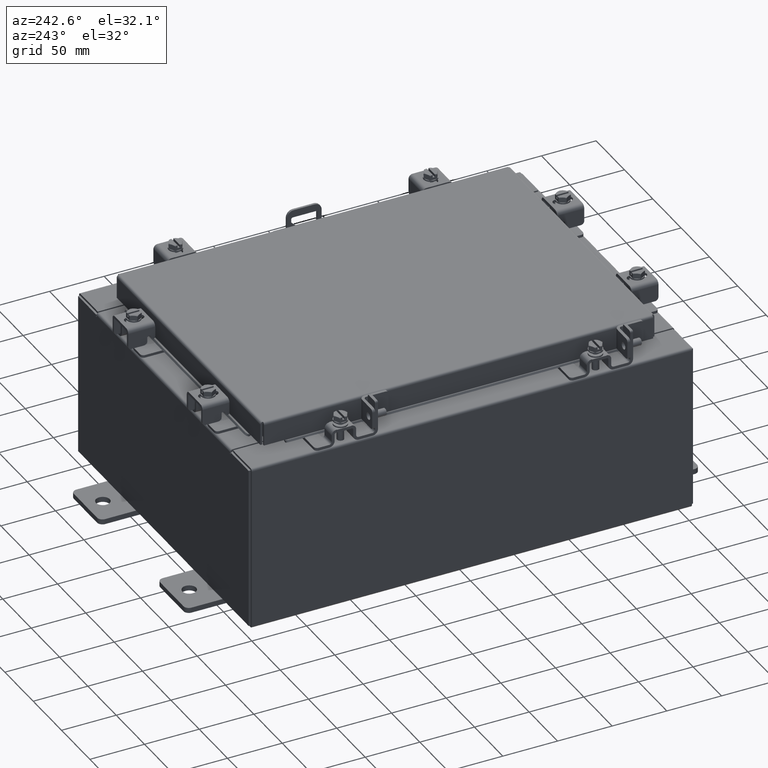
[diagram: clean part render]
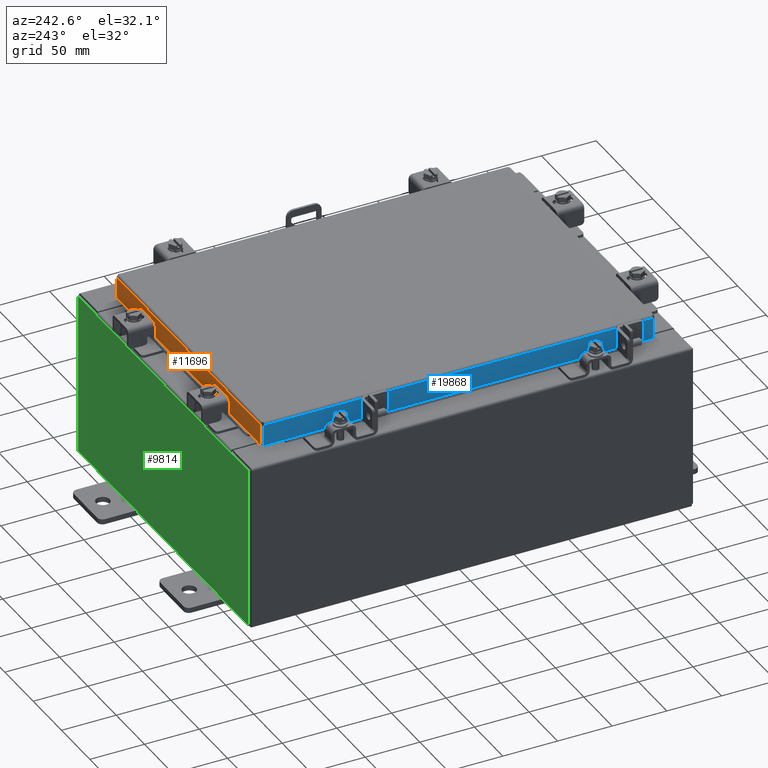
[diagram: same view with three faces highlighted in distinct colors, each labeled with its STEP entity id]
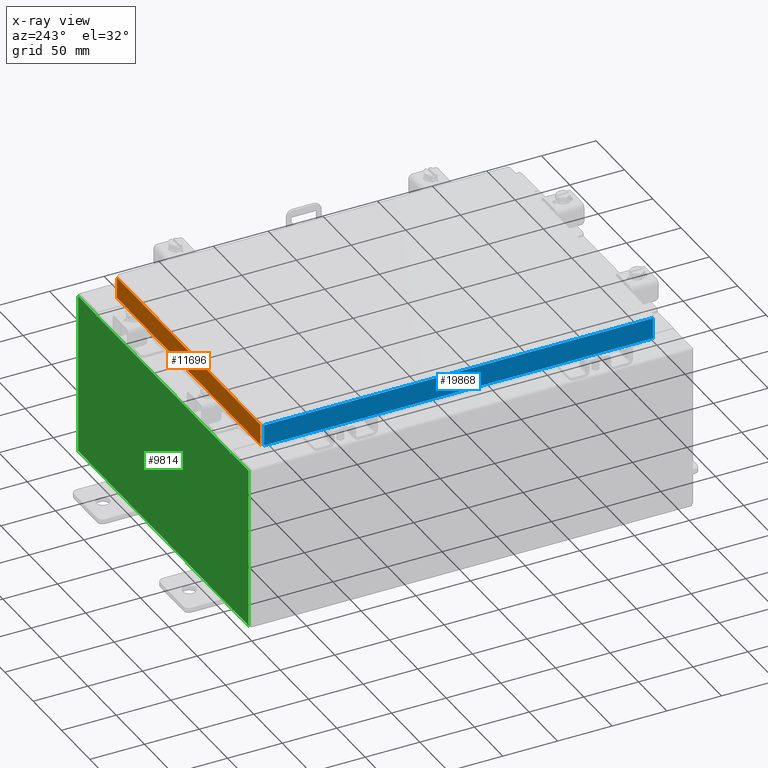
[diagram: x-ray of the same camera — body ghosted, the three highlighted faces saturated]
A machine part, auxiliary view with three faces highlighted in distinct colors.
The next image is the same camera in x-ray (body ghosted, the three faces saturated) — at least one of them is partly hidden behind the body in this view.
Their STEP definitions:

[orange] entity #11696 — the highlighted planar face has unit normal (0, -1, -0).
#90 = VECTOR ( 'NONE', #2516, 39.37007874015748100 ) ;
#124 = ORIENTED_EDGE ( 'NONE', *, *, #761, .T. ) ;
#314 = VERTEX_POINT ( 'NONE', #10337 ) ;
#714 = CARTESIAN_POINT ( 'NONE',  ( -5.078000000000001200, 7.094000000000000300, -0.08770000000000026400 ) ) ;
#761 = EDGE_CURVE ( 'NONE', #3770, #10374, #7259, .T. ) ;
#1057 = ORIENTED_EDGE ( 'NONE', *, *, #15306, .F. ) ;
#1594 = ORIENTED_EDGE ( 'NONE', *, *, #14533, .F. ) ;
#1745 = VECTOR ( 'NONE', #5595, 39.37007874015748100 ) ;
#2284 = CARTESIAN_POINT ( 'NONE',  ( -4.989157864376269700, 7.094000000000000300, -0.08770000000000026400 ) ) ;
#2516 = DIRECTION ( 'NONE',  ( 1.000000000000000000, 4.379057701015054300E-047, 1.210448599004448700E-016 ) ) ;
#2962 = VECTOR ( 'NONE', #8541, 39.37007874015748100 ) ;
#3534 = LINE ( 'NONE', #9274, #19609 ) ;
#3770 = VERTEX_POINT ( 'NONE', #14539 ) ;
#3883 = DIRECTION ( 'NONE',  ( 3.412110487939137700E-031, -1.000000000000000000, -2.818880942772355800E-015 ) ) ;
#4385 = LINE ( 'NONE', #5711, #90 ) ;
#4869 = ORIENTED_EDGE ( 'NONE', *, *, #7162, .F. ) ;
#5065 = VECTOR ( 'NONE', #16799, 39.37007874015748100 ) ;
#5178 = LINE ( 'NONE', #18032, #10458 ) ;
#5584 = CARTESIAN_POINT ( 'NONE',  ( -4.989157864376269700, 7.094000000000000300, -0.07470000000000015500 ) ) ;
#5595 = DIRECTION ( 'NONE',  ( -1.000000000000000000, -3.412110487939138600E-031, -9.300620212429610200E-046 ) ) ;
#5711 = CARTESIAN_POINT ( 'NONE',  ( -5.078000000000001200, 7.094000000000002100, -0.8500000000000010900 ) ) ;
#7162 = EDGE_CURVE ( 'NONE', #3770, #16846, #19353, .T. ) ;
#7259 = LINE ( 'NONE', #7400, #2962 ) ;
#7400 = CARTESIAN_POINT ( 'NONE',  ( 4.989157864376268000, 7.094000000000000300, 2.076204475184840000E-014 ) ) ;
#7563 = CARTESIAN_POINT ( 'NONE',  ( 4.989157864376268000, 7.094000000000002100, -0.8499999999999999800 ) ) ;
#7693 = FACE_OUTER_BOUND ( 'NONE', #11399, .T. ) ;
#8474 = DIRECTION ( 'NONE',  ( 1.000000000000000000, 4.379057701015054300E-047, 1.210448599004448700E-016 ) ) ;
#8541 = DIRECTION ( 'NONE',  ( 0.0000000000000000000, 2.818880942772355800E-015, -1.000000000000000000 ) ) ;
#8751 = ORIENTED_EDGE ( 'NONE', *, *, #17831, .F. ) ;
#9274 = CARTESIAN_POINT ( 'NONE',  ( -4.239157864376270600, 7.094000000000000300, -0.8500000000000010900 ) ) ;
#10337 = CARTESIAN_POINT ( 'NONE',  ( -4.989157864376269700, 7.094000000000002100, -0.8500000000000010900 ) ) ;
#10374 = VERTEX_POINT ( 'NONE', #7563 ) ;
#10458 = VECTOR ( 'NONE', #8474, 39.37007874015748100 ) ;
#11133 = VERTEX_POINT ( 'NONE', #12649 ) ;
#11399 = EDGE_LOOP ( 'NONE', ( #4869, #124, #1057, #8751, #15434, #1594 ) ) ;
#11696 = ADVANCED_FACE ( 'NONE', ( #7693 ), #18251, .F. ) ;
#12057 = AXIS2_PLACEMENT_3D ( 'NONE', #15031, #3883, #15098 ) ;
#12649 = CARTESIAN_POINT ( 'NONE',  ( 4.239157864376268000, 7.094000000000000300, -0.8500000000000010900 ) ) ;
#12886 = CARTESIAN_POINT ( 'NONE',  ( -4.239157864376270600, 7.094000000000000300, -0.8500000000000010900 ) ) ;
#14533 = EDGE_CURVE ( 'NONE', #16846, #314, #17330, .T. ) ;
#14539 = CARTESIAN_POINT ( 'NONE',  ( 4.989157864376268000, 7.094000000000000300, -0.08770000000000026400 ) ) ;
#14957 = VERTEX_POINT ( 'NONE', #12886 ) ;
#15031 = CARTESIAN_POINT ( 'NONE',  ( 0.0000000000000000000, 7.094000000000000300, 2.076204475184840000E-014 ) ) ;
#15098 = DIRECTION ( 'NONE',  ( 0.0000000000000000000, 2.818880942772355800E-015, -1.000000000000000000 ) ) ;
#15306 = EDGE_CURVE ( 'NONE', #11133, #10374, #4385, .T. ) ;
#15434 = ORIENTED_EDGE ( 'NONE', *, *, #19283, .F. ) ;
#16799 = DIRECTION ( 'NONE',  ( -0.0000000000000000000, 2.818880942772355800E-015, -1.000000000000000000 ) ) ;
#16846 = VERTEX_POINT ( 'NONE', #2284 ) ;
#17243 = DIRECTION ( 'NONE',  ( 1.000000000000000000, -0.0000000000000000000, -0.0000000000000000000 ) ) ;
#17330 = LINE ( 'NONE', #5584, #5065 ) ;
#17831 = EDGE_CURVE ( 'NONE', #14957, #11133, #3534, .T. ) ;
#18032 = CARTESIAN_POINT ( 'NONE',  ( -5.078000000000001200, 7.094000000000002100, -0.8500000000000010900 ) ) ;
#18251 = PLANE ( 'NONE',  #12057 ) ;
#19283 = EDGE_CURVE ( 'NONE', #314, #14957, #5178, .T. ) ;
#19353 = LINE ( 'NONE', #714, #1745 ) ;
#19609 = VECTOR ( 'NONE', #17243, 39.37007874015748100 ) ;

[blue] entity #19868 — the highlighted planar face has unit normal (1, 0, -0).
#42 = CARTESIAN_POINT ( 'NONE',  ( -5.078000000000001200, 7.005157864376269700, -0.08770000000000026400 ) ) ;
#1686 = EDGE_CURVE ( 'NONE', #11423, #14892, #2170, .T. ) ;
#2170 = LINE ( 'NONE', #5335, #18761 ) ;
#2344 = VECTOR ( 'NONE', #12616, 39.37007874015748100 ) ;
#3500 = DIRECTION ( 'NONE',  ( -0.0000000000000000000, 1.000000000000000000, -0.0000000000000000000 ) ) ;
#3504 = CARTESIAN_POINT ( 'NONE',  ( -5.078000000000001200, -7.005157864376269700, -0.08770000000000026400 ) ) ;
#4234 = AXIS2_PLACEMENT_3D ( 'NONE', #8165, #19355, #9763 ) ;
#4538 = CARTESIAN_POINT ( 'NONE',  ( -5.078000000000001200, -7.094000000000000300, -0.08770000000000026400 ) ) ;
#5103 = ORIENTED_EDGE ( 'NONE', *, *, #12701, .F. ) ;
#5335 = CARTESIAN_POINT ( 'NONE',  ( -5.078000000000003000, -7.094000000000000300, -0.8499999999999999800 ) ) ;
#5694 = DIRECTION ( 'NONE',  ( 4.379057701015054300E-047, 1.000000000000000000, 1.251551449028595500E-016 ) ) ;
#5884 = LINE ( 'NONE', #16347, #18161 ) ;
#6081 = ORIENTED_EDGE ( 'NONE', *, *, #12721, .F. ) ;
#6398 = VECTOR ( 'NONE', #16893, 39.37007874015748100 ) ;
#6970 = ORIENTED_EDGE ( 'NONE', *, *, #1686, .F. ) ;
#7137 = VECTOR ( 'NONE', #20628, 39.37007874015748100 ) ;
#7697 = EDGE_CURVE ( 'NONE', #8214, #14892, #9061, .T. ) ;
#7791 = CARTESIAN_POINT ( 'NONE',  ( -5.078000000000001200, -7.005157864376269700, -0.07470000000000015500 ) ) ;
#8165 = CARTESIAN_POINT ( 'NONE',  ( -5.078000000000001200, 0.0000000000000000000, 1.420560956705417000E-014 ) ) ;
#8204 = EDGE_LOOP ( 'NONE', ( #6081, #16675, #6970, #16916, #20710, #5103 ) ) ;
#8214 = VERTEX_POINT ( 'NONE', #42 ) ;
#8601 = DIRECTION ( 'NONE',  ( -2.818880942772360100E-015, 6.982962677686267500E-015, -1.000000000000000000 ) ) ;
#8846 = CARTESIAN_POINT ( 'NONE',  ( -5.078000000000003000, -7.094000000000000300, -0.8499999999999999800 ) ) ;
#9061 = LINE ( 'NONE', #18187, #17573 ) ;
#9523 = CARTESIAN_POINT ( 'NONE',  ( -5.078000000000003000, 7.005157864376276000, -0.8499999999999977600 ) ) ;
#9753 = CARTESIAN_POINT ( 'NONE',  ( -5.078000000000003000, -7.005157864376264400, -0.8499999999999999800 ) ) ;
#9763 = DIRECTION ( 'NONE',  ( -2.818880942772360100E-015, 0.0000000000000000000, -1.000000000000000000 ) ) ;
#9987 = VERTEX_POINT ( 'NONE', #13118 ) ;
#10676 = LINE ( 'NONE', #8846, #6398 ) ;
#11423 = VERTEX_POINT ( 'NONE', #12971 ) ;
#11439 = LINE ( 'NONE', #7791, #7137 ) ;
#12192 = VERTEX_POINT ( 'NONE', #3504 ) ;
#12449 = EDGE_CURVE ( 'NONE', #17316, #9987, #10676, .T. ) ;
#12616 = DIRECTION ( 'NONE',  ( 3.527974528565840600E-031, -1.000000000000000000, -9.616438660265784900E-046 ) ) ;
#12701 = EDGE_CURVE ( 'NONE', #12192, #17316, #11439, .T. ) ;
#12721 = EDGE_CURVE ( 'NONE', #8214, #12192, #19435, .T. ) ;
#12971 = CARTESIAN_POINT ( 'NONE',  ( -5.078000000000001200, 6.255157864376274200, -0.8499999999999999800 ) ) ;
#13118 = CARTESIAN_POINT ( 'NONE',  ( -5.078000000000001200, -6.255157864376263500, -0.8499999999999999800 ) ) ;
#14194 = FACE_OUTER_BOUND ( 'NONE', #8204, .T. ) ;
#14892 = VERTEX_POINT ( 'NONE', #9523 ) ;
#15756 = EDGE_CURVE ( 'NONE', #9987, #11423, #5884, .T. ) ;
#16135 = PLANE ( 'NONE',  #4234 ) ;
#16347 = CARTESIAN_POINT ( 'NONE',  ( -5.078000000000001200, -6.255157864376263500, -0.8499999999999999800 ) ) ;
#16675 = ORIENTED_EDGE ( 'NONE', *, *, #7697, .T. ) ;
#16893 = DIRECTION ( 'NONE',  ( 4.379057701015054300E-047, 1.000000000000000000, 1.251551449028595500E-016 ) ) ;
#16916 = ORIENTED_EDGE ( 'NONE', *, *, #15756, .F. ) ;
#17316 = VERTEX_POINT ( 'NONE', #9753 ) ;
#17573 = VECTOR ( 'NONE', #8601, 39.37007874015748100 ) ;
#18161 = VECTOR ( 'NONE', #3500, 39.37007874015748100 ) ;
#18187 = CARTESIAN_POINT ( 'NONE',  ( -5.078000000000001200, 7.005157864376269700, 6.337887345301090800E-014 ) ) ;
#18761 = VECTOR ( 'NONE', #5694, 39.37007874015748100 ) ;
#19355 = DIRECTION ( 'NONE',  ( 1.000000000000000000, 3.527974528565840600E-031, -2.818880942772360100E-015 ) ) ;
#19435 = LINE ( 'NONE', #4538, #2344 ) ;
#19868 = ADVANCED_FACE ( 'NONE', ( #14194 ), #16135, .F. ) ;
#20628 = DIRECTION ( 'NONE',  ( -2.818880942772360100E-015, 6.982962677686267500E-015, -1.000000000000000000 ) ) ;
#20710 = ORIENTED_EDGE ( 'NONE', *, *, #12449, .F. ) ;

[green] entity #9814 — the highlighted planar face has unit normal (0, -1, 0).
#55 = CARTESIAN_POINT ( 'NONE',  ( -5.925299999999999100, 0.0000000000000000000, 2.925299999999999100 ) ) ;
#334 = LINE ( 'NONE', #1585, #8439 ) ;
#558 = DIRECTION ( 'NONE',  ( -0.0000000000000000000, -0.0000000000000000000, 1.000000000000000000 ) ) ;
#629 = EDGE_CURVE ( 'NONE', #18871, #6990, #4474, .T. ) ;
#709 = DIRECTION ( 'NONE',  ( 0.0000000000000000000, 0.0000000000000000000, -1.000000000000000000 ) ) ;
#873 = EDGE_CURVE ( 'NONE', #10125, #19446, #10527, .T. ) ;
#1021 = VERTEX_POINT ( 'NONE', #3973 ) ;
#1205 = AXIS2_PLACEMENT_3D ( 'NONE', #19990, #10372, #709 ) ;
#1585 = CARTESIAN_POINT ( 'NONE',  ( 4.674549999999970700, 0.0000000000000000000, -5.081237268215529600E-014 ) ) ;
#1832 = ORIENTED_EDGE ( 'NONE', *, *, #16704, .T. ) ;
#2078 = LINE ( 'NONE', #5379, #5870 ) ;
#2146 = CARTESIAN_POINT ( 'NONE',  ( -4.637199999999999100, 0.0000000000000000000, 2.912299999999998800 ) ) ;
#2536 = VERTEX_POINT ( 'NONE', #13112 ) ;
#2603 = ORIENTED_EDGE ( 'NONE', *, *, #18263, .F. ) ;
#2618 = ORIENTED_EDGE ( 'NONE', *, *, #4788, .T. ) ;
#2707 = EDGE_CURVE ( 'NONE', #19446, #7401, #7955, .T. ) ;
#2902 = ORIENTED_EDGE ( 'NONE', *, *, #629, .F. ) ;
#3219 = CARTESIAN_POINT ( 'NONE',  ( -5.925299999999999100, 0.0000000000000000000, -2.925299999999999600 ) ) ;
#3280 = CARTESIAN_POINT ( 'NONE',  ( -5.925299999999999100, 0.0000000000000000000, 2.925299999999999100 ) ) ;
#3715 = DIRECTION ( 'NONE',  ( 1.000000000000000000, 0.0000000000000000000, 0.0000000000000000000 ) ) ;
#3884 = DIRECTION ( 'NONE',  ( 1.000000000000000000, 0.0000000000000000000, 0.0000000000000000000 ) ) ;
#3973 = CARTESIAN_POINT ( 'NONE',  ( 4.674550000000001800, 0.0000000000000000000, 2.874949999999999700 ) ) ;
#4086 = ORIENTED_EDGE ( 'NONE', *, *, #7029, .F. ) ;
#4474 = LINE ( 'NONE', #10441, #17779 ) ;
#4550 = EDGE_CURVE ( 'NONE', #10125, #1021, #334, .T. ) ;
#4788 = EDGE_CURVE ( 'NONE', #16732, #14496, #12933, .T. ) ;
#5256 = CARTESIAN_POINT ( 'NONE',  ( 4.637200000000001800, 0.0000000000000000000, 2.912299999999998800 ) ) ;
#5319 = CARTESIAN_POINT ( 'NONE',  ( -4.637199999999999100, 0.0000000000000000000, 0.0000000000000000000 ) ) ;
#5379 = CARTESIAN_POINT ( 'NONE',  ( -5.925299999999999100, 0.0000000000000000000, 2.925299999999999100 ) ) ;
#5385 = VECTOR ( 'NONE', #3715, 39.37007874015748100 ) ;
#5434 = DIRECTION ( 'NONE',  ( 0.0000000000000000000, 0.0000000000000000000, 1.000000000000000000 ) ) ;
#5670 = AXIS2_PLACEMENT_3D ( 'NONE', #17641, #8064, #19276 ) ;
#5742 = VECTOR ( 'NONE', #3884, 39.37007874015748100 ) ;
#5870 = VECTOR ( 'NONE', #558, 39.37007874015748100 ) ;
#6488 = EDGE_CURVE ( 'NONE', #2536, #14496, #20386, .T. ) ;
#6842 = ORIENTED_EDGE ( 'NONE', *, *, #20711, .T. ) ;
#6941 = CARTESIAN_POINT ( 'NONE',  ( 5.925300000000001800, 0.0000000000000000000, 2.925299999999999100 ) ) ;
#6947 = DIRECTION ( 'NONE',  ( 0.0000000000000000000, 0.0000000000000000000, -1.000000000000000000 ) ) ;
#6990 = VERTEX_POINT ( 'NONE', #5256 ) ;
#7029 = EDGE_CURVE ( 'NONE', #13405, #13507, #12846, .T. ) ;
#7061 = CARTESIAN_POINT ( 'NONE',  ( -4.674549999999999100, 0.0000000000000000000, 2.925299999999999100 ) ) ;
#7066 = CARTESIAN_POINT ( 'NONE',  ( -4.637199999999999100, 0.0000000000000000000, 2.912299999999998800 ) ) ;
#7394 = ORIENTED_EDGE ( 'NONE', *, *, #6488, .F. ) ;
#7401 = VERTEX_POINT ( 'NONE', #14304 ) ;
#7584 = VECTOR ( 'NONE', #18452, 39.37007874015748100 ) ;
#7955 = LINE ( 'NONE', #6941, #14960 ) ;
#8024 = CARTESIAN_POINT ( 'NONE',  ( 0.0000000000000000000, 0.0000000000000000000, 0.0000000000000000000 ) ) ;
#8064 = DIRECTION ( 'NONE',  ( -0.0000000000000000000, 1.000000000000000000, -0.0000000000000000000 ) ) ;
#8439 = VECTOR ( 'NONE', #12860, 39.37007874015748100 ) ;
#8560 = DIRECTION ( 'NONE',  ( 1.000000000000000000, 0.0000000000000000000, 0.0000000000000000000 ) ) ;
#8629 = CARTESIAN_POINT ( 'NONE',  ( 4.674550000000000900, 0.0000000000000000000, 2.925299999999999100 ) ) ;
#8791 = EDGE_CURVE ( 'NONE', #1021, #18871, #14303, .T. ) ;
#8855 = CARTESIAN_POINT ( 'NONE',  ( -4.674549999999999100, 0.0000000000000000000, 0.0000000000000000000 ) ) ;
#9814 = ADVANCED_FACE ( 'NONE', ( #18511 ), #19234, .F. ) ;
#10125 = VERTEX_POINT ( 'NONE', #8629 ) ;
#10372 = DIRECTION ( 'NONE',  ( -0.0000000000000000000, 1.000000000000000000, -0.0000000000000000000 ) ) ;
#10441 = CARTESIAN_POINT ( 'NONE',  ( 4.637200000000001800, 0.0000000000000000000, 0.0000000000000000000 ) ) ;
#10523 = CARTESIAN_POINT ( 'NONE',  ( -4.637199999999999100, 0.0000000000000000000, 2.874949999999999700 ) ) ;
#10527 = LINE ( 'NONE', #55, #5742 ) ;
#11261 = DIRECTION ( 'NONE',  ( 0.0000000000000000000, -0.0000000000000000000, -1.000000000000000000 ) ) ;
#11746 = CARTESIAN_POINT ( 'NONE',  ( -5.925299999999999100, 0.0000000000000000000, 2.925299999999999100 ) ) ;
#11886 = DIRECTION ( 'NONE',  ( 0.0000000000000000000, 0.0000000000000000000, -1.000000000000000000 ) ) ;
#11991 = CARTESIAN_POINT ( 'NONE',  ( 4.637200000000001800, 0.0000000000000000000, 2.874949999999999700 ) ) ;
#12189 = VECTOR ( 'NONE', #8560, 39.37007874015748100 ) ;
#12739 = ORIENTED_EDGE ( 'NONE', *, *, #20037, .T. ) ;
#12846 = LINE ( 'NONE', #5319, #17593 ) ;
#12860 = DIRECTION ( 'NONE',  ( -1.085143195100001200E-014, 0.0000000000000000000, -1.000000000000000000 ) ) ;
#12933 = LINE ( 'NONE', #11746, #5385 ) ;
#13000 = ORIENTED_EDGE ( 'NONE', *, *, #873, .T. ) ;
#13112 = CARTESIAN_POINT ( 'NONE',  ( -4.674549999999999100, 0.0000000000000000000, 2.874949999999999700 ) ) ;
#13405 = VERTEX_POINT ( 'NONE', #7066 ) ;
#13507 = VERTEX_POINT ( 'NONE', #10523 ) ;
#14077 = CIRCLE ( 'NONE', #1205, 0.01867500000000003900 ) ;
#14259 = CARTESIAN_POINT ( 'NONE',  ( -5.925299999999999100, 0.0000000000000000000, -2.925299999999999600 ) ) ;
#14303 = CIRCLE ( 'NONE', #5670, 0.01867500000000003900 ) ;
#14304 = CARTESIAN_POINT ( 'NONE',  ( 5.925300000000001800, 0.0000000000000000000, -2.925299999999999600 ) ) ;
#14496 = VERTEX_POINT ( 'NONE', #7061 ) ;
#14598 = ORIENTED_EDGE ( 'NONE', *, *, #4550, .F. ) ;
#14960 = VECTOR ( 'NONE', #11886, 39.37007874015748100 ) ;
#15219 = AXIS2_PLACEMENT_3D ( 'NONE', #8024, #20857, #11261 ) ;
#15937 = LINE ( 'NONE', #2146, #12189 ) ;
#16070 = DIRECTION ( 'NONE',  ( -1.000000000000000000, -0.0000000000000000000, -0.0000000000000000000 ) ) ;
#16118 = ORIENTED_EDGE ( 'NONE', *, *, #8791, .F. ) ;
#16583 = ORIENTED_EDGE ( 'NONE', *, *, #2707, .T. ) ;
#16704 = EDGE_CURVE ( 'NONE', #7401, #17914, #17887, .T. ) ;
#16732 = VERTEX_POINT ( 'NONE', #3280 ) ;
#17593 = VECTOR ( 'NONE', #6947, 39.37007874015748100 ) ;
#17641 = CARTESIAN_POINT ( 'NONE',  ( 4.655875000000001800, 0.0000000000000000000, 2.874949999999999700 ) ) ;
#17779 = VECTOR ( 'NONE', #5434, 39.37007874015748100 ) ;
#17887 = LINE ( 'NONE', #3219, #20672 ) ;
#17914 = VERTEX_POINT ( 'NONE', #14259 ) ;
#18263 = EDGE_CURVE ( 'NONE', #13507, #2536, #14077, .T. ) ;
#18296 = EDGE_LOOP ( 'NONE', ( #7394, #2603, #4086, #12739, #2902, #16118, #14598, #13000, #16583, #1832, #6842, #2618 ) ) ;
#18452 = DIRECTION ( 'NONE',  ( 0.0000000000000000000, 0.0000000000000000000, 1.000000000000000000 ) ) ;
#18511 = FACE_OUTER_BOUND ( 'NONE', #18296, .T. ) ;
#18871 = VERTEX_POINT ( 'NONE', #11991 ) ;
#19234 = PLANE ( 'NONE',  #15219 ) ;
#19276 = DIRECTION ( 'NONE',  ( 0.0000000000000000000, 0.0000000000000000000, -1.000000000000000000 ) ) ;
#19446 = VERTEX_POINT ( 'NONE', #19939 ) ;
#19939 = CARTESIAN_POINT ( 'NONE',  ( 5.925300000000001800, 0.0000000000000000000, 2.925299999999999100 ) ) ;
#19990 = CARTESIAN_POINT ( 'NONE',  ( -4.655874999999999100, 0.0000000000000000000, 2.874949999999999700 ) ) ;
#20037 = EDGE_CURVE ( 'NONE', #13405, #6990, #15937, .T. ) ;
#20386 = LINE ( 'NONE', #8855, #7584 ) ;
#20672 = VECTOR ( 'NONE', #16070, 39.37007874015748100 ) ;
#20711 = EDGE_CURVE ( 'NONE', #17914, #16732, #2078, .T. ) ;
#20857 = DIRECTION ( 'NONE',  ( 0.0000000000000000000, -1.000000000000000000, 0.0000000000000000000 ) ) ;